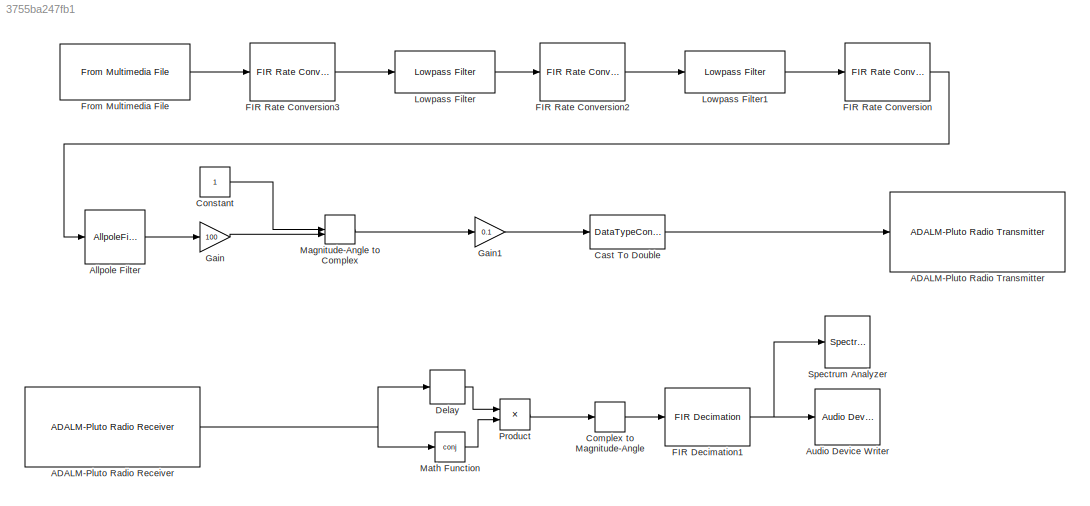
MODEL slx_3755ba247fb1
KIND model
CONFIG AbsTol = auto
CONFIG EnableMultiTasking = off
CONFIG FixedStep = auto
CONFIG MaxStep = auto
CONFIG MinStep = auto
CONFIG RelTol = 1e-3
CONFIG SampleTimeConstraint = Unconstrained
CONFIG SolverName = VariableStepAuto
CONFIG StartTime = 0.0
CONFIG StopTime = 10.0
BLOCK [Reference] ADALM-Pluto Radio Receiver  REF=plutoradiolib/ADALM-Pluto Radio
Receiver
  SourceBlock = plutoradiolib/ADALM-Pluto Radio\nReceiver
  SourceType = comm.SDRRxPluto
BLOCK [Reference] ADALM-Pluto Radio Transmitter  REF=plutoradiolib/ADALM-Pluto Radio
Transmitter
  SourceBlock = plutoradiolib/ADALM-Pluto Radio\nTransmitter
  SourceType = comm.SDRTxPluto
BLOCK [AllpoleFilter] Allpole Filter
  Coefficients = [1 -1]
  InputPortMap = u0
  OutputPortMap = o0
BLOCK [Reference] Audio Device Writer  REF=dspsnks4/Audio Device
Writer
  SourceBlock = dspsnks4/Audio Device\nWriter
  SourceType = Audio Device Writer
BLOCK [DataTypeConversion] Cast To Double
  OutDataTypeStr = double
  RndMeth = Floor
  SaturateOnIntegerOverflow = off
BLOCK [ComplexToMagnitudeAngle] Complex to Magnitude-Angle
  Output = Angle
BLOCK [Constant] Constant
BLOCK [Delay] Delay
  DelayLength = 1
  InputPortMap = u0
  InputProcessing = Columns as channels (frame based)
BLOCK [Reference] FIR Decimation1  REF=dspmlti4/FIR
Decimation
  SourceBlock = dspmlti4/FIR\nDecimation
  SourceType = FIR Decimation
  UserDataPersistent = on
BLOCK [Reference] FIR Rate Conversion  REF=dspmlti4/FIR Rate
Conversion
  SourceBlock = dspmlti4/FIR Rate\nConversion
  SourceType = FIR Rate Conversion
BLOCK [Reference] FIR Rate Conversion2  REF=dspmlti4/FIR Rate
Conversion
  SourceBlock = dspmlti4/FIR Rate\nConversion
  SourceType = FIR Rate Conversion
BLOCK [Reference] FIR Rate Conversion3  REF=dspmlti4/FIR Rate
Conversion
  SourceBlock = dspmlti4/FIR Rate\nConversion
  SourceType = FIR Rate Conversion
BLOCK [Reference] From Multimedia File  REF=dspvision/From Multimedia File
  SourceBlock = dspvision/From Multimedia File
  SourceType = From Multimedia File
BLOCK [Gain] Gain
  Gain = 100
BLOCK [Gain] Gain1
  Gain = 0.1
BLOCK [Reference] Lowpass Filter  REF=dspfdesign/Lowpass Filter
  SourceBlock = dspfdesign/Lowpass Filter
  SourceType = dsp.simulink.LowpassFilter
BLOCK [Reference] Lowpass Filter1  REF=dspfdesign/Lowpass Filter
  SourceBlock = dspfdesign/Lowpass Filter
  SourceType = dsp.simulink.LowpassFilter
BLOCK [MagnitudeAngleToComplex] Magnitude-Angle to Complex
BLOCK [Math] Math Function
  Operator = conj
  SignedPower = on
BLOCK [Product] Product
BLOCK [SpectrumAnalyzer] Spectrum Analyzer
  AllowFFTLengthLessThanSamplesPerUpdate = on
  AveragingMethod = Running
  DefaultConfigurationName = spbscopes.SpectrumAnalyzerBlockCfg
  FrequencyInputRBWFromPort = 0
  FrequencyInputRBWPort = 0
  FrequencyScale = Log
  FrequencySpan = Start and stop frequencies
  FrequencyVectorFromPort = 0
  FrequencyVectorPort = 0
  GraphicalSettings = {"GraphicalSettings":{"SpectralMask":{"CustomReferenceLevel":"0","EnabledMasks":"None","LowerMask":"-Inf","MaskFrequencyOffset":"0","ReferenceLevel":"Custom","SelectedChannel":"1","UpperMask":"Inf"},"Style":{"AxesColor":"[0 0 0]","CFEditBoxDirtyState":"true","DisplayName":"","FsEditBoxDirtyState":"true","LabelsColor":"[0.686274509803922 0.686274509803922 0.686274509803922]","LineStyle":"-","LineWi...<+129ch>
  IsFrequencyInputMode = 0
  Method = Welch
  PlotAsTwoSidedSpectrum = off
  SampleRate = 44.1e3
  SampleRateSource = Property
  ScopeFrameLocation = window
  ScopeSpecificationString = spbscopes.SpectrumAnalyzerBlockCfg('CurrentConfiguration', extmgr.ConfigurationSet(extmgr.Configuration('Core','General UI',true),extmgr.Configuration('Core','Source UI',true),extmgr.Configuration('Sources','WiredSimulink',true),extmgr.Configuration('Visuals','Spectrum',true,'AxesProperties',struct('Color',{[0 0 0],[0 0 0]},'XColor',{[0.686274509803922 0.686274509803922 0.686274509803922],[0.68627...<+2010ch>
  StartFrequency = 20
  StopFrequency = 20e3
  WasSavedAsWebScope = on
  WindowPosition = [366.000000,114.000000,800.000000,450.000000,]
  YLimits = [-91.913974071740838667,22.037890620257858387]
NET ADALM-Pluto Radio Receiver:1 -> Delay:1, Math Function:1
LINE Allpole Filter:1 -> Gain:1
LINE Cast To Double:1 -> ADALM-Pluto Radio Transmitter:1
LINE Complex to Magnitude-Angle:1 -> FIR Decimation1:1
LINE Constant:1 -> Magnitude-Angle to Complex:1
LINE Delay:1 -> Product:1
NET FIR Decimation1:1 -> Audio Device Writer:1, Spectrum Analyzer:1
LINE FIR Rate Conversion2:1 -> Lowpass Filter1:1
LINE FIR Rate Conversion3:1 -> Lowpass Filter:1
LINE FIR Rate Conversion:1 -> Allpole Filter:1
LINE From Multimedia File:1 -> FIR Rate Conversion3:1
LINE Gain1:1 -> Cast To Double:1
LINE Gain:1 -> Magnitude-Angle to Complex:2
LINE Lowpass Filter1:1 -> FIR Rate Conversion:1
LINE Lowpass Filter:1 -> FIR Rate Conversion2:1
LINE Magnitude-Angle to Complex:1 -> Gain1:1
LINE Math Function:1 -> Product:2
LINE Product:1 -> Complex to Magnitude-Angle:1
note: NET lines group one-source signal fan-out (src -> all destinations, sorted); 1:1 wires keep LINE
